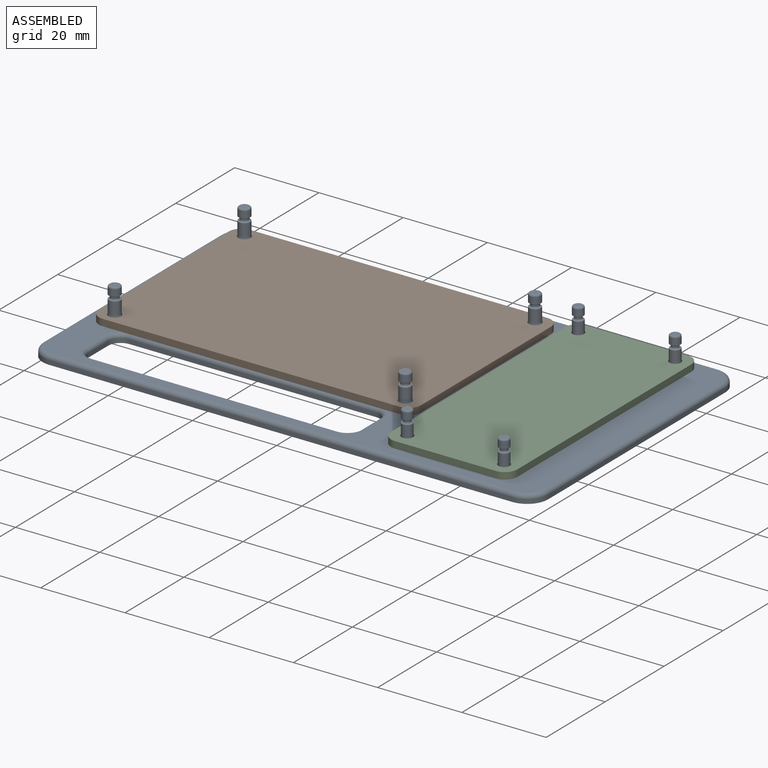
[diagram: assembled view]
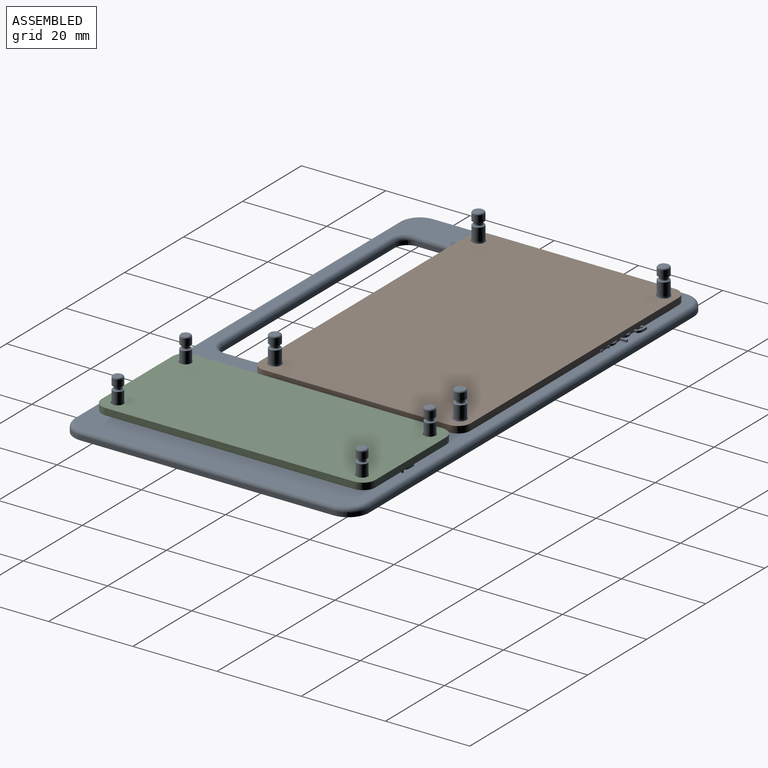
[diagram: assembled view, second angle]
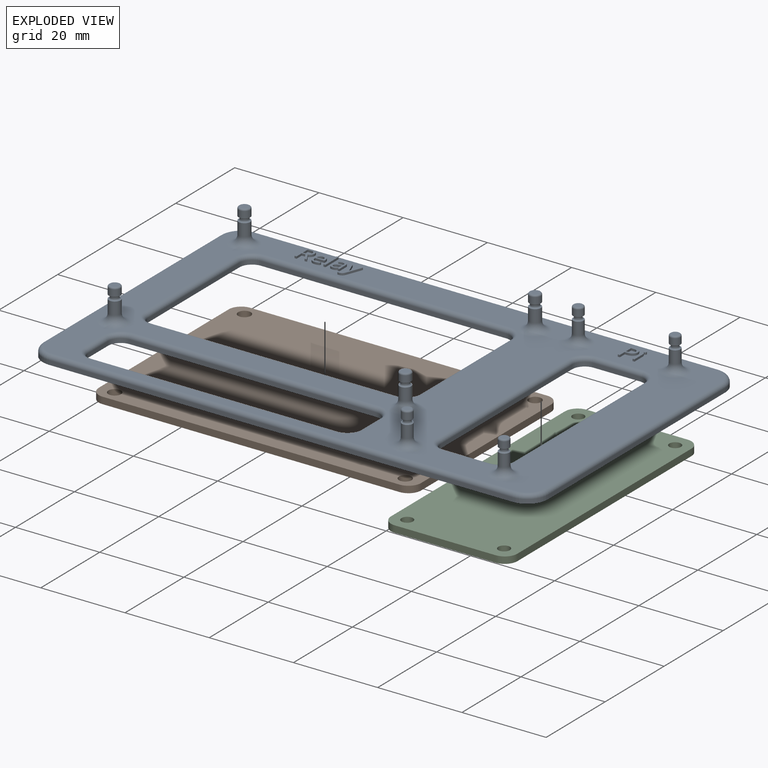
[diagram: exploded view]
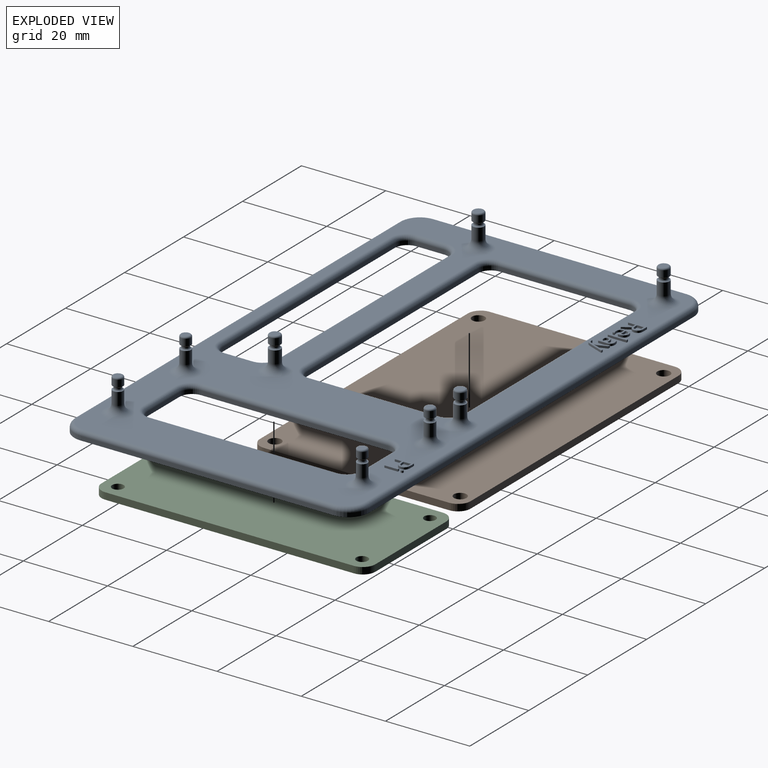
[diagram: exploded view, second angle]
ASSEMBLY  parts=3 mates=2
PART A: 253 faces, bbox 120.8x70.8x10 mm
  f0: cylinder r=1.38mm len=3mm, axis (0,0,-1), area 25.9mm2, adj f49,f238
  f1: cylinder r=1.25mm len=3mm, axis (0,0,-1), area 23.6mm2, adj f48,f236
  f2: cylinder r=1.38mm len=3mm, axis (0,0,-1), area 25.9mm2, adj f47,f244
  f3: cylinder r=1.38mm len=3mm, axis (0,0,-1), area 25.9mm2, adj f46,f240
  f4: cylinder r=1.38mm len=3mm, axis (0,0,-1), area 25.9mm2, adj f45,f242
  f5: cylinder r=1.25mm len=3mm, axis (0,0,-1), area 23.6mm2, adj f44,f234
  f6: cylinder r=1.25mm len=3mm, axis (0,0,-1), area 23.6mm2, adj f43,f230
  f7: cylinder r=1.25mm len=3mm, axis (0,0,-1), area 23.6mm2, adj f42,f232
  f8: plane 60x1mm, normal (-1,0,0), area 60mm2, adj f24,f26,f29,f77
  f9: plane 110x1mm, normal (0,-1,0), area 110mm2, adj f24,f26,f27,f81
  f10: plane 60x1mm, normal (1,0,0), area 60mm2, adj f24,f27,f28,f78
  f11: plane 58.24x1mm, normal (0,1,0), area 58.2mm2, adj f24,f38,f41,f54
  f12: plane 30.87x1mm, normal (1,0,0), area 30.9mm2, adj f24,f38,f39,f50
  f13: plane 58.24x1mm, normal (0,-1,0), area 58.2mm2, adj f24,f39,f40,f53
  f14: plane 11.03x1mm, normal (0,1,0), area 11mm2, adj f24,f34,f37,f62
  f15: plane 44.48x1mm, normal (1,0,0), area 44.5mm2, adj f24,f34,f35,f58
  f16: plane 11.03x1mm, normal (0,-1,0), area 11mm2, adj f24,f35,f36,f61
  f17: plane 58.47x1mm, normal (0,1,0), area 58.5mm2, adj f24,f30,f33,f73
  f18: plane 6.62x1mm, normal (1,0,0), area 6.6mm2, adj f24,f30,f31,f69
  f19: plane 58.47x1mm, normal (0,-1,0), area 58.5mm2, adj f24,f31,f32,f66
  f20: plane 30.87x1mm, normal (-1,0,0), area 30.9mm2, adj f24,f40,f41,f57
  f21: plane 44.48x1mm, normal (-1,0,0), area 44.5mm2, adj f24,f36,f37,f65
  f22: plane 6.62x1mm, normal (-1,0,0), area 6.6mm2, adj f24,f32,f33,f70
  f23: plane 110x1mm, normal (0,1,0), area 110mm2, adj f24,f28,f29,f74
  f24: plane 120x70mm, normal (0,0,-1), area 4360.3mm2, adj f8,f9,f10,f11,f12,f13,f14,f15
  f25: plane 118x68mm, normal (0,0,1), area 3197.8mm2, adj f42,f43,f44,f45,f46,f47,f48,f49
  f26: cylinder r=5mm len=5mm, axis (0,0,1), area 7.9mm2, adj f8,f9,f24,f79
  f27: cylinder r=5mm len=5mm, axis (0,0,-1), area 7.9mm2, adj f9,f10,f24,f80
  f28: cylinder r=5mm len=5mm, axis (0,0,1), area 7.9mm2, adj f10,f23,f24,f76
  f29: cylinder r=5mm len=5mm, axis (0,0,-1), area 7.9mm2, adj f8,f23,f24,f75
  f30: cylinder r=3mm len=3mm, axis (0,0,-1), area 4.7mm2, adj f17,f18,f24,f71
  f31: cylinder r=3mm len=3mm, axis (0,0,1), area 4.7mm2, adj f18,f19,f24,f67
  f32: cylinder r=3mm len=3mm, axis (0,0,-1), area 4.7mm2, adj f19,f22,f24,f68
  f33: cylinder r=3mm len=3mm, axis (0,0,1), area 4.7mm2, adj f17,f22,f24,f72
  f34: cylinder r=3mm len=3mm, axis (0,0,-1), area 4.7mm2, adj f14,f15,f24,f60
  f35: cylinder r=3mm len=3mm, axis (0,0,1), area 4.7mm2, adj f15,f16,f24,f59
  f36: cylinder r=3mm len=3mm, axis (0,0,-1), area 4.7mm2, adj f16,f21,f24,f63
  f37: cylinder r=3mm len=3mm, axis (0,0,1), area 4.7mm2, adj f14,f21,f24,f64
  f38: cylinder r=3mm len=3mm, axis (0,0,-1), area 4.7mm2, adj f11,f12,f24,f52
  f39: cylinder r=3mm len=3mm, axis (0,0,1), area 4.7mm2, adj f12,f13,f24,f51
  f40: cylinder r=3mm len=3mm, axis (0,0,-1), area 4.7mm2, adj f13,f20,f24,f55
  f41: cylinder r=3mm len=3mm, axis (0,0,1), area 4.7mm2, adj f11,f20,f24,f56
  f42: torus R=3.25mm, axis (0,0,1), area 39mm2, adj f7,f25
  f43: torus R=3.25mm, axis (0,0,1), area 39mm2, adj f6,f25
  f44: torus R=3.25mm, axis (0,0,1), area 39mm2, adj f5,f25
  f45: torus R=3.38mm, axis (0,0,1), area 41.5mm2, adj f4,f25
  f46: torus R=3.38mm, axis (0,0,1), area 41.5mm2, adj f3,f25
  f47: torus R=3.38mm, axis (0,0,1), area 41.5mm2, adj f2,f25
  f48: torus R=3.25mm, axis (0,0,1), area 39mm2, adj f1,f25
  f49: torus R=3.38mm, axis (0,0,1), area 41.5mm2, adj f0,f25
  f50: cylinder r=1mm len=30.87mm, axis (0,1,0), area 48.5mm2, adj f12,f25,f51,f52
  f51: torus R=4mm, axis (0,0,1), area 8.3mm2, adj f25,f39,f50,f53
  f52: torus R=4mm, axis (0,0,1), area 8.3mm2, adj f25,f38,f50,f54
  f53: cylinder r=1mm len=58.24mm, axis (1,0,0), area 91.5mm2, adj f13,f25,f51,f55
  f54: cylinder r=1mm len=58.24mm, axis (-1,0,0), area 91.5mm2, adj f11,f25,f52,f56
  f55: torus R=4mm, axis (0,0,1), area 8.3mm2, adj f25,f40,f53,f57
  f56: torus R=4mm, axis (0,0,1), area 8.3mm2, adj f25,f41,f54,f57
  f57: cylinder r=1mm len=30.87mm, axis (0,-1,0), area 48.5mm2, adj f20,f25,f55,f56
  f58: cylinder r=1mm len=44.48mm, axis (0,1,0), area 69.9mm2, adj f15,f25,f59,f60
  f59: torus R=4mm, axis (0,0,1), area 8.3mm2, adj f25,f35,f58,f61
  f60: torus R=4mm, axis (0,0,1), area 8.3mm2, adj f25,f34,f58,f62
  f61: cylinder r=1mm len=11.03mm, axis (1,0,0), area 17.3mm2, adj f16,f25,f59,f63
  f62: cylinder r=1mm len=11.03mm, axis (-1,0,0), area 17.3mm2, adj f14,f25,f60,f64
  f63: torus R=4mm, axis (0,0,1), area 8.3mm2, adj f25,f36,f61,f65
  f64: torus R=4mm, axis (0,0,1), area 8.3mm2, adj f25,f37,f62,f65
  f65: cylinder r=1mm len=44.48mm, axis (0,-1,0), area 69.9mm2, adj f21,f25,f63,f64
  f66: cylinder r=1mm len=58.47mm, axis (1,0,0), area 91.8mm2, adj f19,f25,f67,f68
  f67: torus R=4mm, axis (0,0,1), area 8.3mm2, adj f25,f31,f66,f69
  f68: torus R=4mm, axis (0,0,1), area 8.3mm2, adj f25,f32,f66,f70
  f69: cylinder r=1mm len=6.62mm, axis (0,1,0), area 10.4mm2, adj f18,f25,f67,f71
  f70: cylinder r=1mm len=6.62mm, axis (0,-1,0), area 10.4mm2, adj f22,f25,f68,f72
  f71: torus R=4mm, axis (0,0,1), area 8.3mm2, adj f25,f30,f69,f73
  f72: torus R=4mm, axis (0,0,1), area 8.3mm2, adj f25,f33,f70,f73
  f73: cylinder r=1mm len=58.47mm, axis (-1,0,0), area 91.8mm2, adj f17,f25,f71,f72
  f74: cylinder r=1mm len=110mm, axis (-1,0,0), area 172.8mm2, adj f23,f25,f75,f76
  f75: torus R=4mm, axis (0,0,1), area 11.4mm2, adj f25,f29,f74,f77
  f76: torus R=4mm, axis (0,0,1), area 11.4mm2, adj f25,f28,f74,f78
  f77: cylinder r=1mm len=60mm, axis (0,-1,0), area 94.2mm2, adj f8,f25,f75,f79
  f78: cylinder r=1mm len=60mm, axis (0,1,0), area 94.2mm2, adj f10,f25,f76,f80
  f79: torus R=4mm, axis (0,0,1), area 11.4mm2, adj f25,f26,f77,f81
  f80: torus R=4mm, axis (0,0,1), area 11.4mm2, adj f25,f27,f78,f81
  f81: cylinder r=1mm len=110mm, axis (1,0,0), area 172.8mm2, adj f9,f25,f79,f80
  f82: plane 0.87x0.5mm, normal (0,-1,0), area 0.4mm2, adj f25,f83,f99,f100
  f83: plane 1.74x1.01mm, normal (-0.86,-0.5,0), area 1mm2, adj f25,f82,f84,f100
  f84: plane 0.58x0.5mm, normal (0,-1,0), area 0.3mm2, adj f25,f83,f85,f100
  f85: plane 1.88x1.14mm, normal (0.86,0.52,0), area 1.1mm2, adj f25,f84,f86,f100
  f86: extruded ~1.12x0.84mm, area 0.8mm2, adj f25,f85,f87,f100
  f87: extruded ~0.89x0.5mm, area 0.5mm2, adj f25,f86,f88,f100
  f88: extruded ~1.14x0.5mm, area 0.6mm2, adj f25,f87,f89,f100
  f89: plane 1.15x0.5mm, normal (0,1,0), area 0.6mm2, adj f25,f88,f90,f100
  f90: plane 4.19x0.5mm, normal (-1,0,0), area 2.1mm2, adj f25,f89,f91,f100
  f91: plane 0.5x0.49mm, normal (0,-1,0), area 0.2mm2, adj f25,f90,f99,f100
  f92: plane 1.6x0.5mm, normal (1,0,0), area 0.8mm2, adj f93,f98,f100,f101
  f93: plane 0.63x0.5mm, normal (0,-1,0), area 0.3mm2, adj f92,f94,f100,f101
  f94: extruded ~0.79x0.5mm, area 0.4mm2, adj f93,f95,f100,f101
  f95: extruded ~0.6x0.5mm, area 0.3mm2, adj f94,f96,f100,f101
  f96: extruded ~0.61x0.5mm, area 0.3mm2, adj f95,f97,f100,f101
  f97: extruded ~0.76x0.5mm, area 0.4mm2, adj f96,f98,f100,f101
  f98: plane 0.67x0.5mm, normal (0,1,0), area 0.3mm2, adj f92,f97,f100,f101
  f99: plane 1.74x0.5mm, normal (1,0,0), area 0.9mm2, adj f25,f82,f91,f100
  f100: plane 4.19x2.95mm, normal (0,0,1), area 5.3mm2, adj f82,f83,f84,f85,f86,f87,f88,f89
  f101: plane 1.67x1.6mm, normal (0,0,1), area 2.4mm2, adj f92,f93,f94,f95,f96,f97,f98
  f102: extruded ~0.54x0.5mm, area 0.3mm2, adj f25,f103,f120,f121
  f103: extruded ~0.5x0.48mm, area 0.3mm2, adj f25,f102,f104,f121
  f104: plane 0.5x0.42mm, normal (1,0,0), area 0.2mm2, adj f25,f103,f105,f121
  f105: extruded ~1x0.5mm, area 0.5mm2, adj f25,f104,f106,f121
  f106: extruded ~0.75x0.5mm, area 0.4mm2, adj f25,f105,f107,f121
  f107: extruded ~0.84x0.5mm, area 0.5mm2, adj f25,f106,f108,f121
  f108: plane 2.16x0.5mm, normal (0,-1,0), area 1.1mm2, adj f25,f107,f109,f121
  f109: plane 0.5x0.3mm, normal (1,0,0), area 0.2mm2, adj f25,f108,f110,f121
  f110: extruded ~1.02x0.5mm, area 0.6mm2, adj f25,f109,f111,f121
  f111: extruded ~0.93x0.5mm, area 0.5mm2, adj f25,f110,f112,f121
  f112: extruded ~1.01x0.5mm, area 0.6mm2, adj f25,f111,f113,f121
  f113: extruded ~1.21x0.5mm, area 0.6mm2, adj f25,f112,f114,f121
  f114: extruded ~1.18x0.5mm, area 0.6mm2, adj f25,f113,f120,f121
  f115: extruded ~0.57x0.5mm, area 0.3mm2, adj f116,f119,f121,f122
  f116: extruded ~0.69x0.5mm, area 0.4mm2, adj f115,f117,f121,f122
  f117: plane 1.64x0.5mm, normal (0,1,0), area 0.8mm2, adj f116,f118,f121,f122
  f118: extruded ~0.68x0.5mm, area 0.4mm2, adj f117,f119,f121,f122
  f119: extruded ~0.6x0.5mm, area 0.3mm2, adj f115,f118,f121,f122
  f120: extruded ~1.1x0.5mm, area 0.6mm2, adj f25,f102,f114,f121
  f121: plane 3.26x2.66mm, normal (0,0,1), area 3.9mm2, adj f102,f103,f104,f105,f106,f107,f108,f109
  f122: plane 1.64x0.93mm, normal (0,0,1), area 1.2mm2, adj f115,f116,f117,f118,f119
  f123: plane 4.46x0.5mm, normal (1,0,0), area 2.2mm2, adj f25,f124,f126,f127
  f124: plane 0.5x0.48mm, normal (0,1,0), area 0.2mm2, adj f25,f123,f125,f127
  f125: plane 4.46x0.5mm, normal (-1,0,0), area 2.2mm2, adj f25,f124,f126,f127
  f126: plane 0.5x0.48mm, normal (0,-1,0), area 0.2mm2, adj f25,f123,f125,f127
  f127: plane 4.46x0.48mm, normal (0,0,1), area 2.1mm2, adj f123,f124,f125,f126
  f128: plane 0.5x0.35mm, normal (0,-1,0), area 0.2mm2, adj f25,f129,f154,f155
  f129: plane 2.14x0.5mm, normal (1,0,0), area 1.1mm2, adj f25,f128,f130,f155
  f130: extruded ~0.8x0.5mm, area 0.4mm2, adj f25,f129,f131,f155
  f131: extruded ~0.83x0.5mm, area 0.4mm2, adj f25,f130,f132,f155
  f132: extruded ~0.56x0.5mm, area 0.3mm2, adj f25,f131,f133,f155
  f133: extruded ~0.51x0.5mm, area 0.3mm2, adj f25,f132,f134,f155
  f134: plane 0.5x0.36mm, normal (-0.93,-0.37,0), area 0.2mm2, adj f25,f133,f135,f155
  f135: extruded ~0.89x0.5mm, area 0.5mm2, adj f25,f134,f136,f155
  f136: extruded ~0.51x0.5mm, area 0.3mm2, adj f25,f135,f137,f155
  f137: extruded ~0.55x0.5mm, area 0.3mm2, adj f25,f136,f138,f155
  f138: plane 0.5x0.2mm, normal (-1,0,0), area 0.1mm2, adj f25,f137,f139,f155
  f139: plane 0.53x0.5mm, normal (-0.03,1,0), area 0.3mm2, adj f25,f138,f140,f155
  f140: extruded ~1.52x1mm, area 1mm2, adj f25,f139,f141,f155
  f141: extruded ~0.69x0.5mm, area 0.4mm2, adj f25,f140,f142,f155
  f142: extruded ~0.73x0.5mm, area 0.4mm2, adj f25,f141,f143,f155
  f143: extruded ~0.58x0.5mm, area 0.3mm2, adj f25,f142,f144,f155
  f144: extruded ~0.5x0.47mm, area 0.3mm2, adj f25,f143,f145,f155
  f145: plane 0.5x0.02mm, normal (0,-1,0), area 0mm2, adj f25,f144,f154,f155
  f146: extruded ~0.5x0.44mm, area 0.2mm2, adj f147,f153,f155,f156
  f147: extruded ~0.5x0.39mm, area 0.2mm2, adj f146,f148,f155,f156
  f148: extruded ~0.5x0.49mm, area 0.3mm2, adj f147,f149,f155,f156
  f149: extruded ~0.82x0.5mm, area 0.4mm2, adj f148,f150,f155,f156
  f150: plane 0.5x0.48mm, normal (0.04,-1,0), area 0.2mm2, adj f149,f151,f155,f156
  f151: plane 0.5x0.28mm, normal (-1,0,0), area 0.1mm2, adj f150,f152,f155,f156
  f152: extruded ~0.68x0.5mm, area 0.4mm2, adj f151,f153,f155,f156
  f153: extruded ~0.7x0.5mm, area 0.4mm2, adj f146,f152,f155,f156
  f154: plane 0.5x0.45mm, normal (-0.98,-0.21,0), area 0.2mm2, adj f25,f128,f145,f155
  f155: plane 3.25x2.52mm, normal (0,0,1), area 3.9mm2, adj f128,f129,f130,f131,f132,f133,f134,f135
  f156: plane 1.54x1.21mm, normal (0,0,1), area 1.5mm2, adj f146,f147,f148,f149,f150,f151,f152,f153
  f157: plane 3.16x1.27mm, normal (-0.93,-0.37,0), area 1.7mm2, adj f25,f158,f172,f173
  f158: plane 0.5x0.45mm, normal (-0.93,0.37,0), area 0.2mm2, adj f25,f157,f159,f173
  f159: extruded ~0.7x0.55mm, area 0.5mm2, adj f25,f158,f160,f173
  f160: extruded ~0.5x0.35mm, area 0.2mm2, adj f25,f159,f161,f173
  f161: plane 0.5x0.38mm, normal (-1,0,0), area 0.2mm2, adj f25,f160,f162,f173
  f162: extruded ~0.5x0.43mm, area 0.2mm2, adj f25,f161,f163,f173
  f163: extruded ~0.66x0.5mm, area 0.4mm2, adj f25,f162,f164,f173
  f164: extruded ~0.75x0.5mm, area 0.4mm2, adj f25,f163,f165,f173
  f165: plane 3.58x1.35mm, normal (0.94,-0.35,0), area 1.9mm2, adj f25,f164,f166,f173
  f166: plane 0.51x0.5mm, normal (0,1,0), area 0.3mm2, adj f25,f165,f167,f173
  f167: extruded ~2.18x0.78mm, area 1.2mm2, adj f25,f166,f168,f173
  f168: extruded ~0.5x0.5mm, area 0.3mm2, adj f25,f167,f169,f173
  f169: plane 0.5x0.02mm, normal (0,1,0), area 0mm2, adj f25,f168,f170,f173
  f170: extruded ~0.89x0.5mm, area 0.5mm2, adj f25,f169,f171,f173
  f171: plane 1.79x0.69mm, normal (0.93,0.36,0), area 1mm2, adj f25,f170,f172,f173
  f172: plane 0.51x0.5mm, normal (0,1,0), area 0.3mm2, adj f25,f157,f171,f173
  f173: plane 4.55x2.95mm, normal (0,0,1), area 3.8mm2, adj f157,f158,f159,f160,f161,f162,f163,f164
  f174: extruded ~1.59x1.24mm, area 1.1mm2, adj f25,f175,f188,f189
  f175: plane 1.1x0.5mm, normal (0,1,0), area 0.5mm2, adj f25,f174,f176,f189
  f176: plane 4.24x0.5mm, normal (-1,0,0), area 2.1mm2, adj f25,f175,f177,f189
  f177: plane 0.5x0.49mm, normal (0,-1,0), area 0.2mm2, adj f25,f176,f178,f189
  f178: plane 1.67x0.5mm, normal (1,0,0), area 0.8mm2, adj f25,f177,f179,f189
  f179: plane 0.5x0.5mm, normal (0,-1,0), area 0.2mm2, adj f25,f178,f180,f189
  f180: extruded ~1.26x0.5mm, area 0.7mm2, adj f25,f179,f188,f189
  f181: plane 1.72x0.5mm, normal (1,0,0), area 0.9mm2, adj f182,f187,f189,f190
  f182: plane 0.55x0.5mm, normal (0,-1,0), area 0.3mm2, adj f181,f183,f189,f190
  f183: extruded ~0.86x0.5mm, area 0.4mm2, adj f182,f184,f189,f190
  f184: extruded ~0.63x0.5mm, area 0.4mm2, adj f183,f185,f189,f190
  f185: extruded ~0.68x0.5mm, area 0.4mm2, adj f184,f186,f189,f190
  f186: extruded ~0.95x0.5mm, area 0.5mm2, adj f185,f187,f189,f190
  f187: plane 0.5x0.44mm, normal (0,1,0), area 0.2mm2, adj f181,f186,f189,f190
  f188: extruded ~0.99x0.5mm, area 0.6mm2, adj f25,f174,f180,f189
  f189: plane 4.24x2.69mm, normal (0,0,1), area 4.4mm2, adj f174,f175,f176,f177,f178,f179,f180,f181
  f190: plane 1.72x1.69mm, normal (0,0,1), area 2.6mm2, adj f181,f182,f183,f184,f185,f186,f187
  f191: plane 3.18x0.5mm, normal (1,0,0), area 1.6mm2, adj f25,f192,f194,f195
  f192: plane 0.5x0.48mm, normal (0,1,0), area 0.2mm2, adj f25,f191,f193,f195
  f193: plane 3.18x0.5mm, normal (-1,0,0), area 1.6mm2, adj f25,f192,f194,f195
  f194: plane 0.5x0.48mm, normal (0,-1,0), area 0.2mm2, adj f25,f191,f193,f195
  f195: plane 3.18x0.48mm, normal (0,0,1), area 1.5mm2, adj f191,f192,f193,f194
  f196: extruded ~0.5x0.24mm, area 0.1mm2, adj f25,f197,f203,f204
  f197: extruded ~0.5x0.2mm, area 0.1mm2, adj f25,f196,f198,f204
  f198: extruded ~0.5x0.2mm, area 0.1mm2, adj f25,f197,f199,f204
  f199: extruded ~0.5x0.24mm, area 0.1mm2, adj f25,f198,f200,f204
  f200: extruded ~0.5x0.24mm, area 0.1mm2, adj f25,f199,f201,f204
  f201: extruded ~0.5x0.2mm, area 0.1mm2, adj f25,f200,f202,f204
  f202: extruded ~0.5x0.2mm, area 0.1mm2, adj f25,f201,f203,f204
  f203: extruded ~0.5x0.24mm, area 0.1mm2, adj f25,f196,f202,f204
  f204: plane 0.64x0.57mm, normal (0,0,1), area 0.3mm2, adj f196,f197,f198,f199,f200,f201,f202,f203
  f205: cylinder r=0.85mm len=1.7mm, axis (0,0,1), area 1.1mm2, adj f231,f232
  f206: cylinder r=0.85mm len=1.7mm, axis (0,0,1), area 1.1mm2, adj f229,f230
  f207: cylinder r=0.85mm len=1.7mm, axis (0,0,1), area 1.1mm2, adj f233,f234
  f208: cylinder r=0.97mm len=1.95mm, axis (0,0,1), area 1.2mm2, adj f241,f242
  f209: cylinder r=0.97mm len=1.95mm, axis (0,0,1), area 1.2mm2, adj f239,f240
  f210: cylinder r=0.97mm len=1.95mm, axis (0,0,1), area 1.2mm2, adj f243,f244
  f211: cylinder r=0.85mm len=1.7mm, axis (0,0,1), area 1.1mm2, adj f235,f236
  f212: cylinder r=0.98mm len=1.95mm, axis (0,0,1), area 1.2mm2, adj f237,f238
  f213: plane 1.7x1.7mm, normal (0,0,1), area 2.3mm2, adj f246
  f214: cylinder r=1.25mm len=2.5mm, axis (0,0,-1), area 12.6mm2, adj f231,f246
  f215: plane 1.7x1.7mm, normal (0,0,1), area 2.3mm2, adj f245
  f216: cylinder r=1.25mm len=2.5mm, axis (0,0,-1), area 12.6mm2, adj f229,f245
  f217: plane 1.7x1.7mm, normal (0,0,1), area 2.3mm2, adj f247
  f218: cylinder r=1.25mm len=2.5mm, axis (0,0,-1), area 12.6mm2, adj f233,f247
  f219: plane 1.95x1.95mm, normal (0,0,1), area 3mm2, adj f250
  f220: cylinder r=1.38mm len=2.75mm, axis (0,0,-1), area 13.8mm2, adj f241,f250
  f221: plane 1.95x1.95mm, normal (0,0,1), area 3mm2, adj f249
  f222: cylinder r=1.38mm len=2.75mm, axis (0,0,-1), area 13.8mm2, adj f239,f249
  f223: plane 1.95x1.95mm, normal (0,0,1), area 3mm2, adj f251
  f224: cylinder r=1.38mm len=2.75mm, axis (0,0,-1), area 13.8mm2, adj f243,f251
  f225: plane 1.7x1.7mm, normal (0,0,1), area 2.3mm2, adj f248
  f226: cylinder r=1.25mm len=2.5mm, axis (0,0,-1), area 12.6mm2, adj f235,f248
  f227: plane 1.95x1.95mm, normal (0,0,1), area 3mm2, adj f252
  f228: cylinder r=1.38mm len=2.75mm, axis (0,0,-1), area 13.8mm2, adj f237,f252
  f229: torus R=1.25mm, axis (0,0,1), area 3.9mm2, adj f206,f216
  f230: torus R=1.25mm, axis (0,0,1), area 3.9mm2, adj f6,f206
  f231: torus R=1.25mm, axis (0,0,1), area 3.9mm2, adj f205,f214
  f232: torus R=1.25mm, axis (0,0,1), area 3.9mm2, adj f7,f205
  f233: torus R=1.25mm, axis (0,0,1), area 3.9mm2, adj f207,f218
  f234: torus R=1.25mm, axis (0,0,1), area 3.9mm2, adj f5,f207
  f235: torus R=1.25mm, axis (0,0,1), area 3.9mm2, adj f211,f226
  f236: torus R=1.25mm, axis (0,0,1), area 3.9mm2, adj f1,f211
  f237: torus R=1.38mm, axis (0,0,1), area 4.4mm2, adj f212,f228
  f238: torus R=1.38mm, axis (0,0,1), area 4.4mm2, adj f0,f212
  f239: torus R=1.38mm, axis (0,0,1), area 4.4mm2, adj f209,f222
  f240: torus R=1.38mm, axis (0,0,1), area 4.4mm2, adj f3,f209
  f241: torus R=1.38mm, axis (0,0,1), area 4.4mm2, adj f208,f220
  f242: torus R=1.38mm, axis (0,0,1), area 4.4mm2, adj f4,f208
  f243: torus R=1.38mm, axis (0,0,1), area 4.4mm2, adj f210,f224
  f244: torus R=1.38mm, axis (0,0,1), area 4.4mm2, adj f2,f210
  f245: torus R=0.85mm, axis (0,0,1), area 4.4mm2, adj f215,f216
  f246: torus R=0.85mm, axis (0,0,1), area 4.4mm2, adj f213,f214
  f247: torus R=0.85mm, axis (0,0,1), area 4.4mm2, adj f217,f218
  f248: torus R=0.85mm, axis (0,0,1), area 4.4mm2, adj f225,f226
  f249: torus R=0.97mm, axis (0,0,1), area 4.9mm2, adj f221,f222
  f250: torus R=0.97mm, axis (0,0,1), area 4.9mm2, adj f219,f220
  f251: torus R=0.97mm, axis (0,0,1), area 4.9mm2, adj f223,f224
  f252: torus R=0.97mm, axis (0,0,1), area 4.9mm2, adj f227,f228
PART B: 14 faces, bbox 76.5x50x1.6 mm
  f0: cylinder r=3mm len=3mm, axis (0,0,-1), area 7.5mm2, adj f1,f11,f12,f13
  f1: plane 70.5x1.6mm, normal (0,-1,0), area 112.8mm2, adj f0,f2,f12,f13
  f2: cylinder r=3mm len=3mm, axis (0,0,-1), area 7.5mm2, adj f1,f3,f12,f13
  f3: plane 44x1.6mm, normal (1,0,0), area 70.4mm2, adj f2,f4,f12,f13
  f4: cylinder r=3mm len=3mm, axis (0,0,-1), area 7.5mm2, adj f3,f5,f12,f13
  f5: plane 70.5x1.6mm, normal (0,1,0), area 112.8mm2, adj f4,f6,f12,f13
  f6: cylinder r=3mm len=3mm, axis (0,0,-1), area 7.5mm2, adj f5,f11,f12,f13
  f7: cylinder r=1.5mm len=3mm, axis (0,0,-1), area 15.1mm2, adj f12,f13
  f8: cylinder r=1.5mm len=3mm, axis (0,0,-1), area 15.1mm2, adj f12,f13
  f9: cylinder r=1.5mm len=3mm, axis (0,0,-1), area 15.1mm2, adj f12,f13
  f10: cylinder r=1.5mm len=3mm, axis (0,0,-1), area 15.1mm2, adj f12,f13
  f11: plane 44x1.6mm, normal (-1,0,0), area 70.4mm2, adj f0,f6,f12,f13
  f12: plane 76.5x50mm, normal (0,0,1), area 3789mm2, adj f0,f1,f2,f3,f4,f5,f6,f7
  f13: plane 76.5x50mm, normal (0,0,-1), area 3789mm2, adj f0,f1,f2,f3,f4,f5,f6,f7
PART C: 14 faces, bbox 30x65x1.6 mm
  f0: cylinder r=3mm len=3mm, axis (0,0,-1), area 7.5mm2, adj f1,f11,f12,f13
  f1: plane 59x1.6mm, normal (-1,0,0), area 94.4mm2, adj f0,f2,f12,f13
  f2: cylinder r=3mm len=3mm, axis (0,0,-1), area 7.5mm2, adj f1,f3,f12,f13
  f3: plane 24x1.6mm, normal (0,-1,0), area 38.4mm2, adj f2,f4,f12,f13
  f4: cylinder r=3mm len=3mm, axis (0,0,-1), area 7.5mm2, adj f3,f5,f12,f13
  f5: plane 59x1.6mm, normal (1,0,0), area 94.4mm2, adj f4,f6,f12,f13
  f6: cylinder r=3mm len=3mm, axis (0,0,-1), area 7.5mm2, adj f5,f11,f12,f13
  f7: cylinder r=1.38mm len=2.75mm, axis (0,0,-1), area 13.8mm2, adj f12,f13
  f8: cylinder r=1.38mm len=2.75mm, axis (0,0,-1), area 13.8mm2, adj f12,f13
  f9: cylinder r=1.38mm len=2.75mm, axis (0,0,-1), area 13.8mm2, adj f12,f13
  f10: cylinder r=1.38mm len=2.75mm, axis (0,0,-1), area 13.8mm2, adj f12,f13
  f11: plane 24x1.6mm, normal (0,1,0), area 38.4mm2, adj f0,f6,f12,f13
  f12: plane 65x30mm, normal (0,0,1), area 1918.5mm2, adj f0,f1,f2,f3,f4,f5,f6,f7
  f13: plane 65x30mm, normal (0,0,-1), area 1918.5mm2, adj f0,f1,f2,f3,f4,f5,f6,f7
PLACE A t=(-116.06,-20.55,14.93)mm
PLACE B t=(-84.61,-5.11,14.93)mm
PLACE C t=(-101.34,12.37,15.52)mm
MATE fastened A.f3 <-> B.f9  axis (0,0,1) through (-65.28,-1.96,14.93)mm
MATE fastened C.f8 <-> A.f1  axis (0,0,-1) through (-55.01,-1.96,15.52)mm
